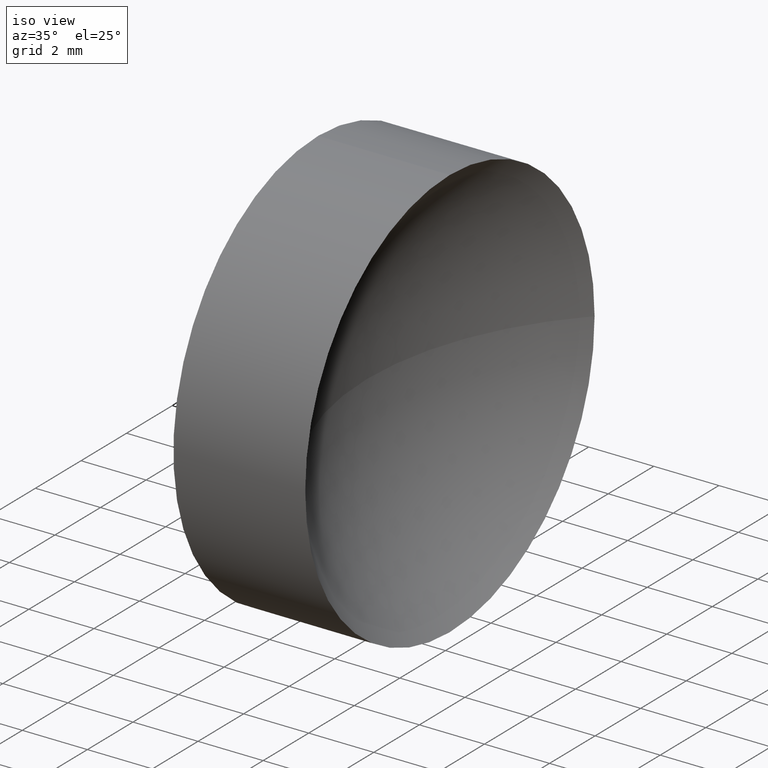
[diagram: clean part render]
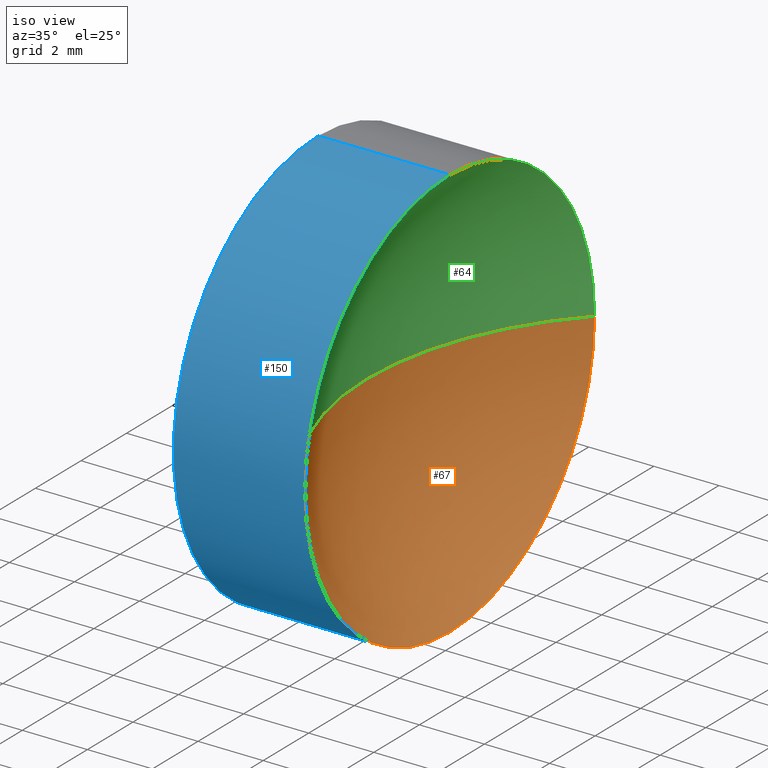
[diagram: same view with three faces highlighted in distinct colors, each labeled with its STEP entity id]
A machine part, iso view with three faces highlighted in distinct colors.
Their STEP definitions:

[orange] entity #67 — the highlighted spherical surface has radius 9.1814 mm.
#2 = EDGE_CURVE ( 'NONE', #51, #155, #116, .T. ) ;
#4 = DIRECTION ( 'NONE',  ( 0.0000000000000000000, 0.0000000000000000000, -1.000000000000000000 ) ) ;
#7 = ORIENTED_EDGE ( 'NONE', *, *, #75, .F. ) ;
#8 = AXIS2_PLACEMENT_3D ( 'NONE', #61, #160, #58 ) ;
#13 = DIRECTION ( 'NONE',  ( -1.000000000000000000, -0.0000000000000000000, -0.0000000000000000000 ) ) ;
#21 = EDGE_CURVE ( 'NONE', #47, #180, #83, .T. ) ;
#27 = CARTESIAN_POINT ( 'NONE',  ( 51.80370850148246800, 28.47759563463748100, 0.0000000000000000000 ) ) ;
#37 = EDGE_CURVE ( 'NONE', #51, #47, #174, .T. ) ;
#38 = AXIS2_PLACEMENT_3D ( 'NONE', #97, #13, #109 ) ;
#43 = DIRECTION ( 'NONE',  ( 0.0000000000000000000, -1.224646799147353200E-016, 1.000000000000000000 ) ) ;
#46 = CARTESIAN_POINT ( 'NONE',  ( 58.43508105050207700, 28.47759563463748100, 0.0000000000000000000 ) ) ;
#47 = VERTEX_POINT ( 'NONE', #127 ) ;
#51 = VERTEX_POINT ( 'NONE', #68 ) ;
#54 = ORIENTED_EDGE ( 'NONE', *, *, #37, .F. ) ;
#58 = DIRECTION ( 'NONE',  ( 0.0000000000000000000, -1.000000000000000000, 0.0000000000000000000 ) ) ;
#61 = CARTESIAN_POINT ( 'NONE',  ( 58.43508105050207700, 28.47759563463748100, 0.0000000000000000000 ) ) ;
#67 = ADVANCED_FACE ( 'NONE', ( #95 ), #111, .F. ) ;
#68 = CARTESIAN_POINT ( 'NONE',  ( 51.80370850148246800, 34.82759563463748300, 7.776507174585696100E-016 ) ) ;
#69 = DIRECTION ( 'NONE',  ( 0.0000000000000000000, -1.000000000000000000, -1.224646799147353200E-016 ) ) ;
#75 = EDGE_CURVE ( 'NONE', #180, #155, #153, .T. ) ;
#83 = CIRCLE ( 'NONE', #106, 6.350000000000001400 ) ;
#95 = FACE_OUTER_BOUND ( 'NONE', #132, .T. ) ;
#97 = CARTESIAN_POINT ( 'NONE',  ( 51.80370850148246800, 28.47759563463748100, 0.0000000000000000000 ) ) ;
#101 = CARTESIAN_POINT ( 'NONE',  ( 49.25370850148246400, 28.47759563463748100, 0.0000000000000000000 ) ) ;
#102 = ORIENTED_EDGE ( 'NONE', *, *, #2, .T. ) ;
#106 = AXIS2_PLACEMENT_3D ( 'NONE', #27, #156, #142 ) ;
#109 = DIRECTION ( 'NONE',  ( 0.0000000000000000000, 0.0000000000000000000, 1.000000000000000000 ) ) ;
#111 = SPHERICAL_SURFACE ( 'NONE', #8, 9.181372549019608100 ) ;
#115 = AXIS2_PLACEMENT_3D ( 'NONE', #46, #4, #131 ) ;
#116 = CIRCLE ( 'NONE', #145, 9.181372549019608100 ) ;
#127 = CARTESIAN_POINT ( 'NONE',  ( 51.80370850148246800, 28.47759563463748100, -6.350000000000001400 ) ) ;
#129 = ORIENTED_EDGE ( 'NONE', *, *, #21, .F. ) ;
#131 = DIRECTION ( 'NONE',  ( -1.000000000000000000, 0.0000000000000000000, 0.0000000000000000000 ) ) ;
#132 = EDGE_LOOP ( 'NONE', ( #54, #102, #7, #129 ) ) ;
#142 = DIRECTION ( 'NONE',  ( 0.0000000000000000000, 0.0000000000000000000, 1.000000000000000000 ) ) ;
#145 = AXIS2_PLACEMENT_3D ( 'NONE', #182, #43, #69 ) ;
#153 = CIRCLE ( 'NONE', #115, 9.181372549019608100 ) ;
#155 = VERTEX_POINT ( 'NONE', #101 ) ;
#156 = DIRECTION ( 'NONE',  ( -1.000000000000000000, -0.0000000000000000000, -0.0000000000000000000 ) ) ;
#160 = DIRECTION ( 'NONE',  ( 0.0000000000000000000, 0.0000000000000000000, 1.000000000000000000 ) ) ;
#173 = CARTESIAN_POINT ( 'NONE',  ( 51.80370850148246800, 22.12759563463748000, 0.0000000000000000000 ) ) ;
#174 = CIRCLE ( 'NONE', #38, 6.350000000000001400 ) ;
#180 = VERTEX_POINT ( 'NONE', #173 ) ;
#182 = CARTESIAN_POINT ( 'NONE',  ( 58.43508105050207700, 28.47759563463748100, 0.0000000000000000000 ) ) ;

[blue] entity #150 — the highlighted cylindrical surface (partial cylindrical patch) has radius 6.35 mm, axis along (-1, -0, -0).
#3 = CARTESIAN_POINT ( 'NONE',  ( 44.78209190302423800, 28.47759563463748100, 0.0000000000000000000 ) ) ;
#15 = LINE ( 'NONE', #70, #120 ) ;
#21 = EDGE_CURVE ( 'NONE', #47, #180, #83, .T. ) ;
#24 = CIRCLE ( 'NONE', #56, 6.350000000000001400 ) ;
#26 = EDGE_CURVE ( 'NONE', #180, #148, #139, .T. ) ;
#27 = CARTESIAN_POINT ( 'NONE',  ( 51.80370850148246800, 28.47759563463748100, 0.0000000000000000000 ) ) ;
#32 = EDGE_LOOP ( 'NONE', ( #41, #52, #105, #165, #177 ) ) ;
#34 = CARTESIAN_POINT ( 'NONE',  ( 47.75370850148247100, 28.47759563463748100, -6.350000000000001400 ) ) ;
#39 = FACE_OUTER_BOUND ( 'NONE', #32, .T. ) ;
#40 = EDGE_CURVE ( 'NONE', #163, #134, #24, .T. ) ;
#41 = ORIENTED_EDGE ( 'NONE', *, *, #59, .F. ) ;
#42 = DIRECTION ( 'NONE',  ( -1.000000000000000000, -0.0000000000000000000, -0.0000000000000000000 ) ) ;
#47 = VERTEX_POINT ( 'NONE', #127 ) ;
#48 = AXIS2_PLACEMENT_3D ( 'NONE', #168, #80, #183 ) ;
#49 = LINE ( 'NONE', #100, #157 ) ;
#50 = EDGE_CURVE ( 'NONE', #148, #134, #15, .T. ) ;
#52 = ORIENTED_EDGE ( 'NONE', *, *, #21, .T. ) ;
#56 = AXIS2_PLACEMENT_3D ( 'NONE', #82, #57, #98 ) ;
#57 = DIRECTION ( 'NONE',  ( -1.000000000000000000, -0.0000000000000000000, -0.0000000000000000000 ) ) ;
#59 = EDGE_CURVE ( 'NONE', #47, #163, #49, .T. ) ;
#70 = CARTESIAN_POINT ( 'NONE',  ( 44.78209190302423800, 28.47759563463748100, 6.350000000000001400 ) ) ;
#73 = CARTESIAN_POINT ( 'NONE',  ( 47.75370850148247100, 28.47759563463748100, 6.350000000000001400 ) ) ;
#80 = DIRECTION ( 'NONE',  ( -1.000000000000000000, -0.0000000000000000000, -0.0000000000000000000 ) ) ;
#82 = CARTESIAN_POINT ( 'NONE',  ( 47.75370850148247100, 28.47759563463748100, 0.0000000000000000000 ) ) ;
#83 = CIRCLE ( 'NONE', #106, 6.350000000000001400 ) ;
#85 = DIRECTION ( 'NONE',  ( 0.0000000000000000000, 0.0000000000000000000, 1.000000000000000000 ) ) ;
#98 = DIRECTION ( 'NONE',  ( 0.0000000000000000000, 0.0000000000000000000, 1.000000000000000000 ) ) ;
#100 = CARTESIAN_POINT ( 'NONE',  ( 44.78209190302423800, 28.47759563463748100, -6.350000000000001400 ) ) ;
#105 = ORIENTED_EDGE ( 'NONE', *, *, #26, .T. ) ;
#106 = AXIS2_PLACEMENT_3D ( 'NONE', #27, #156, #142 ) ;
#117 = CYLINDRICAL_SURFACE ( 'NONE', #171, 6.350000000000001400 ) ;
#120 = VECTOR ( 'NONE', #172, 1000.000000000000000 ) ;
#127 = CARTESIAN_POINT ( 'NONE',  ( 51.80370850148246800, 28.47759563463748100, -6.350000000000001400 ) ) ;
#134 = VERTEX_POINT ( 'NONE', #73 ) ;
#139 = CIRCLE ( 'NONE', #48, 6.350000000000001400 ) ;
#142 = DIRECTION ( 'NONE',  ( 0.0000000000000000000, 0.0000000000000000000, 1.000000000000000000 ) ) ;
#148 = VERTEX_POINT ( 'NONE', #175 ) ;
#150 = ADVANCED_FACE ( 'NONE', ( #39 ), #117, .T. ) ;
#156 = DIRECTION ( 'NONE',  ( -1.000000000000000000, -0.0000000000000000000, -0.0000000000000000000 ) ) ;
#157 = VECTOR ( 'NONE', #42, 1000.000000000000000 ) ;
#159 = DIRECTION ( 'NONE',  ( -1.000000000000000000, -0.0000000000000000000, -0.0000000000000000000 ) ) ;
#163 = VERTEX_POINT ( 'NONE', #34 ) ;
#165 = ORIENTED_EDGE ( 'NONE', *, *, #50, .T. ) ;
#168 = CARTESIAN_POINT ( 'NONE',  ( 51.80370850148246800, 28.47759563463748100, 0.0000000000000000000 ) ) ;
#171 = AXIS2_PLACEMENT_3D ( 'NONE', #3, #159, #85 ) ;
#172 = DIRECTION ( 'NONE',  ( -1.000000000000000000, -0.0000000000000000000, -0.0000000000000000000 ) ) ;
#173 = CARTESIAN_POINT ( 'NONE',  ( 51.80370850148246800, 22.12759563463748000, 0.0000000000000000000 ) ) ;
#175 = CARTESIAN_POINT ( 'NONE',  ( 51.80370850148246800, 28.47759563463748100, 6.350000000000001400 ) ) ;
#177 = ORIENTED_EDGE ( 'NONE', *, *, #40, .F. ) ;
#180 = VERTEX_POINT ( 'NONE', #173 ) ;
#183 = DIRECTION ( 'NONE',  ( 0.0000000000000000000, 0.0000000000000000000, 1.000000000000000000 ) ) ;

[green] entity #64 — the highlighted spherical surface has radius 9.1814 mm.
#2 = EDGE_CURVE ( 'NONE', #51, #155, #116, .T. ) ;
#4 = DIRECTION ( 'NONE',  ( 0.0000000000000000000, 0.0000000000000000000, -1.000000000000000000 ) ) ;
#9 = FACE_OUTER_BOUND ( 'NONE', #162, .T. ) ;
#26 = EDGE_CURVE ( 'NONE', #180, #148, #139, .T. ) ;
#31 = DIRECTION ( 'NONE',  ( 0.0000000000000000000, 0.0000000000000000000, 1.000000000000000000 ) ) ;
#33 = DIRECTION ( 'NONE',  ( 0.0000000000000000000, -1.000000000000000000, 0.0000000000000000000 ) ) ;
#43 = DIRECTION ( 'NONE',  ( 0.0000000000000000000, -1.224646799147353200E-016, 1.000000000000000000 ) ) ;
#45 = CARTESIAN_POINT ( 'NONE',  ( 58.43508105050207700, 28.47759563463748100, 0.0000000000000000000 ) ) ;
#46 = CARTESIAN_POINT ( 'NONE',  ( 58.43508105050207700, 28.47759563463748100, 0.0000000000000000000 ) ) ;
#48 = AXIS2_PLACEMENT_3D ( 'NONE', #168, #80, #183 ) ;
#51 = VERTEX_POINT ( 'NONE', #68 ) ;
#64 = ADVANCED_FACE ( 'NONE', ( #9 ), #93, .F. ) ;
#68 = CARTESIAN_POINT ( 'NONE',  ( 51.80370850148246800, 34.82759563463748300, 7.776507174585696100E-016 ) ) ;
#69 = DIRECTION ( 'NONE',  ( 0.0000000000000000000, -1.000000000000000000, -1.224646799147353200E-016 ) ) ;
#75 = EDGE_CURVE ( 'NONE', #180, #155, #153, .T. ) ;
#78 = CIRCLE ( 'NONE', #110, 6.350000000000001400 ) ;
#80 = DIRECTION ( 'NONE',  ( -1.000000000000000000, -0.0000000000000000000, -0.0000000000000000000 ) ) ;
#84 = DIRECTION ( 'NONE',  ( 0.0000000000000000000, 0.0000000000000000000, 1.000000000000000000 ) ) ;
#87 = ORIENTED_EDGE ( 'NONE', *, *, #2, .F. ) ;
#93 = SPHERICAL_SURFACE ( 'NONE', #179, 9.181372549019608100 ) ;
#101 = CARTESIAN_POINT ( 'NONE',  ( 49.25370850148246400, 28.47759563463748100, 0.0000000000000000000 ) ) ;
#110 = AXIS2_PLACEMENT_3D ( 'NONE', #158, #146, #31 ) ;
#115 = AXIS2_PLACEMENT_3D ( 'NONE', #46, #4, #131 ) ;
#116 = CIRCLE ( 'NONE', #145, 9.181372549019608100 ) ;
#123 = EDGE_CURVE ( 'NONE', #148, #51, #78, .T. ) ;
#124 = ORIENTED_EDGE ( 'NONE', *, *, #26, .F. ) ;
#131 = DIRECTION ( 'NONE',  ( -1.000000000000000000, 0.0000000000000000000, 0.0000000000000000000 ) ) ;
#139 = CIRCLE ( 'NONE', #48, 6.350000000000001400 ) ;
#143 = ORIENTED_EDGE ( 'NONE', *, *, #75, .T. ) ;
#145 = AXIS2_PLACEMENT_3D ( 'NONE', #182, #43, #69 ) ;
#146 = DIRECTION ( 'NONE',  ( -1.000000000000000000, -0.0000000000000000000, -0.0000000000000000000 ) ) ;
#148 = VERTEX_POINT ( 'NONE', #175 ) ;
#149 = ORIENTED_EDGE ( 'NONE', *, *, #123, .F. ) ;
#153 = CIRCLE ( 'NONE', #115, 9.181372549019608100 ) ;
#155 = VERTEX_POINT ( 'NONE', #101 ) ;
#158 = CARTESIAN_POINT ( 'NONE',  ( 51.80370850148246800, 28.47759563463748100, 0.0000000000000000000 ) ) ;
#162 = EDGE_LOOP ( 'NONE', ( #87, #149, #124, #143 ) ) ;
#168 = CARTESIAN_POINT ( 'NONE',  ( 51.80370850148246800, 28.47759563463748100, 0.0000000000000000000 ) ) ;
#173 = CARTESIAN_POINT ( 'NONE',  ( 51.80370850148246800, 22.12759563463748000, 0.0000000000000000000 ) ) ;
#175 = CARTESIAN_POINT ( 'NONE',  ( 51.80370850148246800, 28.47759563463748100, 6.350000000000001400 ) ) ;
#179 = AXIS2_PLACEMENT_3D ( 'NONE', #45, #84, #33 ) ;
#180 = VERTEX_POINT ( 'NONE', #173 ) ;
#182 = CARTESIAN_POINT ( 'NONE',  ( 58.43508105050207700, 28.47759563463748100, 0.0000000000000000000 ) ) ;
#183 = DIRECTION ( 'NONE',  ( 0.0000000000000000000, 0.0000000000000000000, 1.000000000000000000 ) ) ;